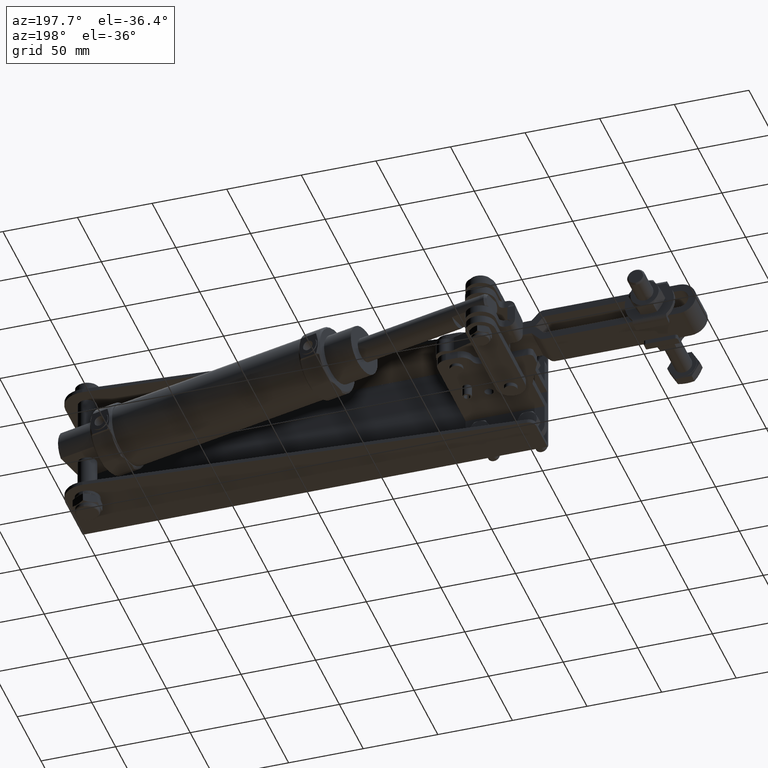
[diagram: clean part render]
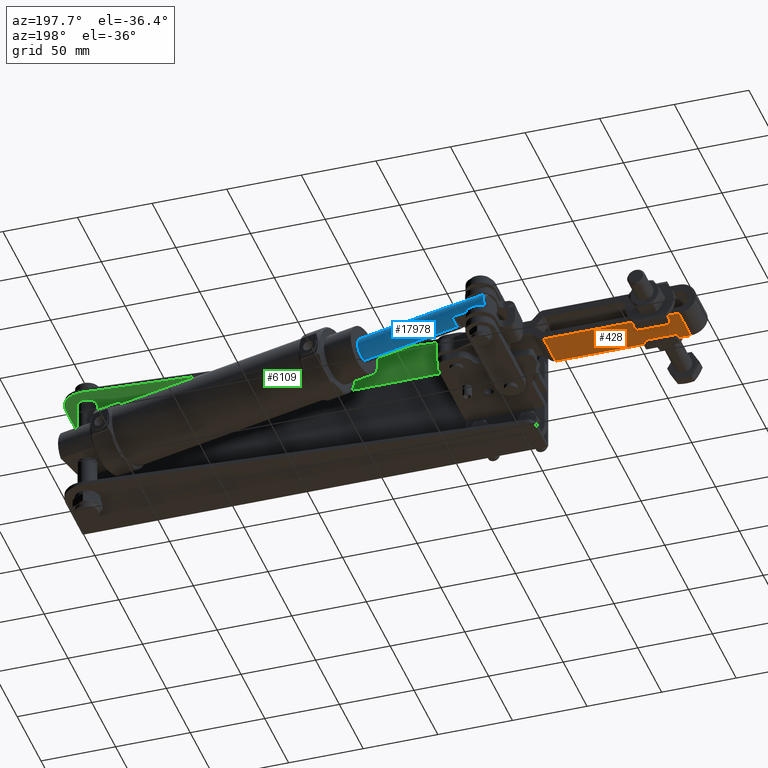
[diagram: same view with three faces highlighted in distinct colors, each labeled with its STEP entity id]
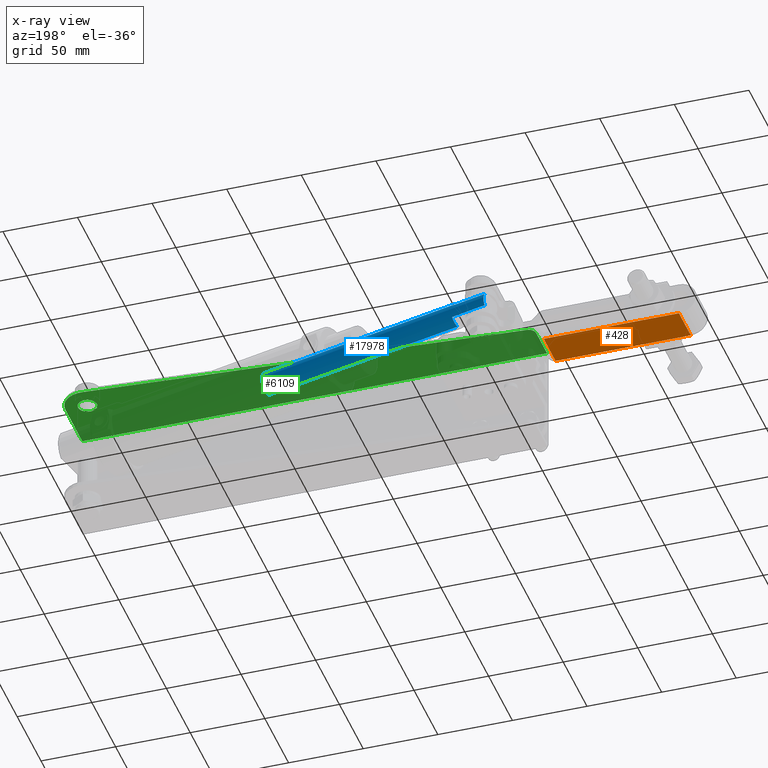
[diagram: x-ray of the same camera — body ghosted, the three highlighted faces saturated]
A machine part, auxiliary view with three faces highlighted in distinct colors.
The next image is the same camera in x-ray (body ghosted, the three faces saturated) — at least one of them is partly hidden behind the body in this view.
Their STEP definitions:

[orange] entity #428 — the highlighted planar face has unit normal (0, 0, -1).
#404 = ORIENTED_EDGE ( 'NONE', *, *, #14369, .T. ) ;
#428 = ADVANCED_FACE ( 'NONE', ( #10650 ), #21637, .T. ) ;
#1138 = CARTESIAN_POINT ( 'NONE',  ( -75.00885629904233600, 76.00000000000025600, -11.35000000000001600 ) ) ;
#1175 = CARTESIAN_POINT ( 'NONE',  ( -75.00885629904233600, 51.00000000000025600, -11.35000000000000300 ) ) ;
#2173 = VECTOR ( 'NONE', #9636, 1000.000000000000000 ) ;
#3152 = VERTEX_POINT ( 'NONE', #5247 ) ;
#3353 = EDGE_CURVE ( 'NONE', #22486, #3152, #16225, .T. ) ;
#5247 = CARTESIAN_POINT ( 'NONE',  ( -165.6499999999986400, 51.00000000000025600, -11.35000000000001600 ) ) ;
#6951 = VERTEX_POINT ( 'NONE', #1175 ) ;
#7180 = EDGE_LOOP ( 'NONE', ( #17545, #404, #22588, #21653 ) ) ;
#7461 = LINE ( 'NONE', #19276, #21515 ) ;
#8280 = DIRECTION ( 'NONE',  ( -1.000000000000000000, 0.0000000000000000000, -1.495451272393799800E-016 ) ) ;
#8434 = DIRECTION ( 'NONE',  ( -1.000000000000000000, -0.0000000000000000000, 0.0000000000000000000 ) ) ;
#9636 = DIRECTION ( 'NONE',  ( -0.0000000000000000000, -1.000000000000000000, 0.0000000000000000000 ) ) ;
#10564 = DIRECTION ( 'NONE',  ( -0.0000000000000000000, -1.000000000000000000, 0.0000000000000000000 ) ) ;
#10596 = DIRECTION ( 'NONE',  ( 1.000000000000000000, 0.0000000000000000000, 1.495451272393799800E-016 ) ) ;
#10650 = FACE_OUTER_BOUND ( 'NONE', #7180, .T. ) ;
#11632 = EDGE_CURVE ( 'NONE', #6951, #3152, #7461, .T. ) ;
#12448 = CARTESIAN_POINT ( 'NONE',  ( -72.84999999999867300, 83.00000000000025600, -11.35000000000000300 ) ) ;
#13479 = AXIS2_PLACEMENT_3D ( 'NONE', #12448, #23427, #10596 ) ;
#14369 = EDGE_CURVE ( 'NONE', #15806, #6951, #22734, .T. ) ;
#15656 = CARTESIAN_POINT ( 'NONE',  ( -176.9999999999986900, 76.00000000000025600, -11.35000000000001600 ) ) ;
#15778 = EDGE_CURVE ( 'NONE', #15806, #22486, #23257, .T. ) ;
#15806 = VERTEX_POINT ( 'NONE', #1138 ) ;
#16225 = LINE ( 'NONE', #20625, #2173 ) ;
#17291 = VECTOR ( 'NONE', #10564, 1000.000000000000000 ) ;
#17545 = ORIENTED_EDGE ( 'NONE', *, *, #15778, .F. ) ;
#17842 = CARTESIAN_POINT ( 'NONE',  ( -75.00885629904233600, 83.00000000000025600, -11.35000000000000300 ) ) ;
#18370 = VECTOR ( 'NONE', #8434, 1000.000000000000000 ) ;
#19137 = CARTESIAN_POINT ( 'NONE',  ( -165.6499999999986400, 76.00000000000025600, -11.35000000000001600 ) ) ;
#19276 = CARTESIAN_POINT ( 'NONE',  ( -72.84999999999867300, 51.00000000000025600, -11.35000000000000300 ) ) ;
#20625 = CARTESIAN_POINT ( 'NONE',  ( -165.6499999999986400, 83.00000000000025600, -11.35000000000001600 ) ) ;
#21515 = VECTOR ( 'NONE', #8280, 1000.000000000000000 ) ;
#21637 = PLANE ( 'NONE',  #13479 ) ;
#21653 = ORIENTED_EDGE ( 'NONE', *, *, #3353, .F. ) ;
#22486 = VERTEX_POINT ( 'NONE', #19137 ) ;
#22588 = ORIENTED_EDGE ( 'NONE', *, *, #11632, .T. ) ;
#22734 = LINE ( 'NONE', #17842, #17291 ) ;
#23257 = LINE ( 'NONE', #15656, #18370 ) ;
#23427 = DIRECTION ( 'NONE',  ( 1.495451272393799800E-016, 0.0000000000000000000, -1.000000000000000000 ) ) ;

[blue] entity #17978 — the highlighted cylindrical surface (edge-blend (fillet) strip) has radius 8 mm, axis along (0.9717, -0.2364, -0).
#252 = CARTESIAN_POINT ( 'NONE',  ( -25.14038329672013800, 100.8989818581250500, 4.271817669516890200E-015 ) ) ;
#344 = CARTESIAN_POINT ( 'NONE',  ( 112.0098691187218200, 67.53536750984798700, -7.247272280863953700E-016 ) ) ;
#537 = ORIENTED_EDGE ( 'NONE', *, *, #2723, .F. ) ;
#615 = AXIS2_PLACEMENT_3D ( 'NONE', #344, #13166, #18637 ) ;
#937 = CARTESIAN_POINT ( 'NONE',  ( -47.23694072003470300, 113.0815370104895500, -4.499999999999994700 ) ) ;
#999 = CARTESIAN_POINT ( 'NONE',  ( -25.14038329672013800, 100.8989818581250400, 8.000000000000003600 ) ) ;
#1084 = ORIENTED_EDGE ( 'NONE', *, *, #2083, .F. ) ;
#1172 = CARTESIAN_POINT ( 'NONE',  ( -23.57694322580608700, 107.3259294341256700, 4.500000000000003600 ) ) ;
#1876 = VERTEX_POINT ( 'NONE', #13360 ) ;
#2083 = EDGE_CURVE ( 'NONE', #11594, #1876, #14288, .T. ) ;
#2126 = DIRECTION ( 'NONE',  ( 0.0000000000000000000, 0.0000000000000000000, 1.000000000000000000 ) ) ;
#2692 = EDGE_CURVE ( 'NONE', #1876, #15397, #19990, .T. ) ;
#2723 = EDGE_CURVE ( 'NONE', #15219, #11594, #14529, .T. ) ;
#2730 = CYLINDRICAL_SURFACE ( 'NONE', #10605, 7.999999999999998200 ) ;
#3349 = EDGE_CURVE ( 'NONE', #15219, #22064, #8767, .T. ) ;
#3447 = CARTESIAN_POINT ( 'NONE',  ( -48.80038079098875400, 106.6545894343244600, 5.133779187452703200E-015 ) ) ;
#3525 = DIRECTION ( 'NONE',  ( 0.9716631414484020500, -0.2363699209938155400, -3.539883030537218600E-017 ) ) ;
#3789 = VECTOR ( 'NONE', #9519, 1000.000000000000100 ) ;
#4375 = LINE ( 'NONE', #7672, #3789 ) ;
#4441 = CARTESIAN_POINT ( 'NONE',  ( -25.14038329672013800, 100.8989818581250400, -7.999999999999992900 ) ) ;
#4553 = DIRECTION ( 'NONE',  ( -0.9716631414484021600, 0.2363699209938155700, 3.539883030537219200E-017 ) ) ;
#4690 = ORIENTED_EDGE ( 'NONE', *, *, #19008, .T. ) ;
#5267 = CARTESIAN_POINT ( 'NONE',  ( -25.14038329672013800, 100.8989818581250500, 4.271817669516890200E-015 ) ) ;
#5868 = DIRECTION ( 'NONE',  ( -0.9716631414484020500, 0.2363699209938155400, 3.539883030537218600E-017 ) ) ;
#6066 = ORIENTED_EDGE ( 'NONE', *, *, #10966, .T. ) ;
#7075 = CIRCLE ( 'NONE', #19972, 7.999999999999998200 ) ;
#7112 = DIRECTION ( 'NONE',  ( 0.0000000000000000000, 0.0000000000000000000, 1.000000000000000000 ) ) ;
#7672 = CARTESIAN_POINT ( 'NONE',  ( -48.80038079098875400, 106.6545894343244600, 8.000000000000003600 ) ) ;
#8176 = EDGE_LOOP ( 'NONE', ( #14303, #6066, #22396, #1084, #537, #21641, #19512, #4690 ) ) ;
#8767 = LINE ( 'NONE', #15007, #23407 ) ;
#9404 = VECTOR ( 'NONE', #3525, 1000.000000000000100 ) ;
#9519 = DIRECTION ( 'NONE',  ( 0.9716631414484020500, -0.2363699209938155400, -3.539883030537218600E-017 ) ) ;
#10605 = AXIS2_PLACEMENT_3D ( 'NONE', #3447, #19876, #18027 ) ;
#10966 = EDGE_CURVE ( 'NONE', #20918, #15397, #4375, .T. ) ;
#11498 = CARTESIAN_POINT ( 'NONE',  ( -47.23694071989869800, 113.0815370104564700, 4.500000000000004400 ) ) ;
#11594 = VERTEX_POINT ( 'NONE', #4441 ) ;
#11777 = CIRCLE ( 'NONE', #13118, 7.999999999999998200 ) ;
#11979 = DIRECTION ( 'NONE',  ( 0.9716631414484020500, -0.2363699209938155400, -3.539883030537218600E-017 ) ) ;
#12721 = VERTEX_POINT ( 'NONE', #1172 ) ;
#12772 = CARTESIAN_POINT ( 'NONE',  ( 112.0098691187218200, 67.53536750984798700, 7.999999999999998200 ) ) ;
#13094 = DIRECTION ( 'NONE',  ( -0.9716631414484021600, 0.2363699209938155700, 3.539883030537219200E-017 ) ) ;
#13118 = AXIS2_PLACEMENT_3D ( 'NONE', #5267, #18090, #7112 ) ;
#13166 = DIRECTION ( 'NONE',  ( 0.9716631414484020500, -0.2363699209938156000, -3.539883030537219200E-017 ) ) ;
#13360 = CARTESIAN_POINT ( 'NONE',  ( 112.0098691187218200, 67.53536750984798700, -7.999999999999998200 ) ) ;
#14288 = LINE ( 'NONE', #18181, #9404 ) ;
#14303 = ORIENTED_EDGE ( 'NONE', *, *, #20615, .F. ) ;
#14529 = CIRCLE ( 'NONE', #23218, 7.999999999999998200 ) ;
#14674 = VERTEX_POINT ( 'NONE', #11498 ) ;
#15007 = CARTESIAN_POINT ( 'NONE',  ( -36.54864616406222700, 110.4814678797220500, -4.499999999999994700 ) ) ;
#15219 = VERTEX_POINT ( 'NONE', #21369 ) ;
#15397 = VERTEX_POINT ( 'NONE', #12772 ) ;
#15535 = CARTESIAN_POINT ( 'NONE',  ( -48.80038079098875400, 106.6545894343244600, 5.133779187452703200E-015 ) ) ;
#17057 = VECTOR ( 'NONE', #11979, 1000.000000000000100 ) ;
#17344 = FACE_OUTER_BOUND ( 'NONE', #8176, .T. ) ;
#17376 = DIRECTION ( 'NONE',  ( 0.0000000000000000000, 0.0000000000000000000, -1.000000000000000000 ) ) ;
#17978 = ADVANCED_FACE ( 'NONE', ( #17344 ), #2730, .T. ) ;
#18027 = DIRECTION ( 'NONE',  ( 0.0000000000000000000, 0.0000000000000000000, -1.000000000000000000 ) ) ;
#18090 = DIRECTION ( 'NONE',  ( -0.9716631414484021600, 0.2363699209938155700, 3.539883030537219200E-017 ) ) ;
#18181 = CARTESIAN_POINT ( 'NONE',  ( -48.80038079098875400, 106.6545894343244600, -7.999999999999992900 ) ) ;
#18368 = EDGE_CURVE ( 'NONE', #14674, #22064, #7075, .T. ) ;
#18637 = DIRECTION ( 'NONE',  ( 0.2363699209938159300, 0.9716631414484020500, 0.0000000000000000000 ) ) ;
#19008 = EDGE_CURVE ( 'NONE', #14674, #12721, #22495, .T. ) ;
#19428 = CARTESIAN_POINT ( 'NONE',  ( -36.54864616406222700, 110.4814678797220500, 4.500000000000004400 ) ) ;
#19512 = ORIENTED_EDGE ( 'NONE', *, *, #18368, .F. ) ;
#19876 = DIRECTION ( 'NONE',  ( 0.9716631414484021600, -0.2363699209938155700, -3.539883030537219200E-017 ) ) ;
#19972 = AXIS2_PLACEMENT_3D ( 'NONE', #15535, #4553, #17376 ) ;
#19990 = CIRCLE ( 'NONE', #615, 8.000000000000005300 ) ;
#20615 = EDGE_CURVE ( 'NONE', #20918, #12721, #11777, .T. ) ;
#20918 = VERTEX_POINT ( 'NONE', #999 ) ;
#21369 = CARTESIAN_POINT ( 'NONE',  ( -23.57694322580608700, 107.3259294341256700, -4.499999999999994700 ) ) ;
#21641 = ORIENTED_EDGE ( 'NONE', *, *, #3349, .T. ) ;
#22064 = VERTEX_POINT ( 'NONE', #937 ) ;
#22396 = ORIENTED_EDGE ( 'NONE', *, *, #2692, .F. ) ;
#22495 = LINE ( 'NONE', #19428, #17057 ) ;
#23218 = AXIS2_PLACEMENT_3D ( 'NONE', #252, #13094, #2126 ) ;
#23407 = VECTOR ( 'NONE', #5868, 1000.000000000000100 ) ;

[green] entity #6109 — the highlighted planar face has unit normal (0, -0, 1).
#96 = DIRECTION ( 'NONE',  ( 1.000000000000000000, 0.0000000000000000000, 0.0000000000000000000 ) ) ;
#186 = AXIS2_PLACEMENT_3D ( 'NONE', #20725, #9741, #22551 ) ;
#1222 = EDGE_LOOP ( 'NONE', ( #22407, #10178 ) ) ;
#1372 = DIRECTION ( 'NONE',  ( -0.0000000000000000000, 3.927675794664469400E-016, -1.000000000000000000 ) ) ;
#1380 = VERTEX_POINT ( 'NONE', #3952 ) ;
#1383 = CARTESIAN_POINT ( 'NONE',  ( -53.00000000000001400, -2.500000000000001300, 35.50000000000000700 ) ) ;
#1917 = VERTEX_POINT ( 'NONE', #4163 ) ;
#2460 = VECTOR ( 'NONE', #19641, 1000.000000000000100 ) ;
#2682 = LINE ( 'NONE', #1383, #6383 ) ;
#3658 = LINE ( 'NONE', #7078, #17706 ) ;
#3670 = ORIENTED_EDGE ( 'NONE', *, *, #14925, .T. ) ;
#3709 = ORIENTED_EDGE ( 'NONE', *, *, #9727, .F. ) ;
#3952 = CARTESIAN_POINT ( 'NONE',  ( -53.00000000000001400, 0.009999999999997857800, 35.50000000000000700 ) ) ;
#4163 = CARTESIAN_POINT ( 'NONE',  ( 250.0499999999999800, 35.50000000000000000, 35.49999999999998600 ) ) ;
#4285 = AXIS2_PLACEMENT_3D ( 'NONE', #12363, #1372, #14212 ) ;
#4480 = EDGE_CURVE ( 'NONE', #22413, #1917, #20726, .T. ) ;
#4573 = FACE_OUTER_BOUND ( 'NONE', #7759, .T. ) ;
#5025 = CARTESIAN_POINT ( 'NONE',  ( -53.00000000000001400, 22.87354133646644900, 35.50000000000001400 ) ) ;
#5253 = CIRCLE ( 'NONE', #19940, 15.00000000000000700 ) ;
#5349 = CARTESIAN_POINT ( 'NONE',  ( 258.5000000000000000, -2.500000000000001300, 35.50000000000000700 ) ) ;
#6109 = ADVANCED_FACE ( 'NONE', ( #23507, #4573 ), #11320, .F. ) ;
#6383 = VECTOR ( 'NONE', #14221, 1000.000000000000000 ) ;
#6485 = CIRCLE ( 'NONE', #16711, 6.350000000000022700 ) ;
#6640 = ORIENTED_EDGE ( 'NONE', *, *, #13926, .T. ) ;
#7009 = CARTESIAN_POINT ( 'NONE',  ( 258.5000000000000000, 35.50000000000000000, 35.50000000000001400 ) ) ;
#7078 = CARTESIAN_POINT ( 'NONE',  ( 258.5000000000000000, 0.009999999999997857800, 35.50000000000000700 ) ) ;
#7707 = CARTESIAN_POINT ( 'NONE',  ( 258.5000000000000000, -2.500000000000001300, 35.50000000000000700 ) ) ;
#7759 = EDGE_LOOP ( 'NONE', ( #3670, #22233, #22547, #6640, #3709, #9340 ) ) ;
#9340 = ORIENTED_EDGE ( 'NONE', *, *, #13302, .T. ) ;
#9553 = DIRECTION ( 'NONE',  ( 0.0000000000000000000, -1.000000000000000000, -3.927675794664469400E-016 ) ) ;
#9594 = EDGE_CURVE ( 'NONE', #15714, #12695, #17080, .T. ) ;
#9727 = EDGE_CURVE ( 'NONE', #18286, #15298, #17930, .T. ) ;
#9741 = DIRECTION ( 'NONE',  ( 0.0000000000000000000, 0.0000000000000000000, 1.000000000000000000 ) ) ;
#10178 = ORIENTED_EDGE ( 'NONE', *, *, #22579, .T. ) ;
#10979 = DIRECTION ( 'NONE',  ( -0.0000000000000000000, 3.927675794664469400E-016, -1.000000000000000000 ) ) ;
#11092 = DIRECTION ( 'NONE',  ( 0.0000000000000000000, 0.0000000000000000000, 1.000000000000000000 ) ) ;
#11295 = VERTEX_POINT ( 'NONE', #5025 ) ;
#11320 = PLANE ( 'NONE',  #13767 ) ;
#12363 = CARTESIAN_POINT ( 'NONE',  ( -48.00000000000001400, 22.87354133646644900, 35.50000000000001400 ) ) ;
#12695 = VERTEX_POINT ( 'NONE', #17446 ) ;
#13302 = EDGE_CURVE ( 'NONE', #18286, #1380, #3658, .T. ) ;
#13767 = AXIS2_PLACEMENT_3D ( 'NONE', #7707, #20534, #9553 ) ;
#13926 = EDGE_CURVE ( 'NONE', #12695, #15298, #5253, .T. ) ;
#14212 = DIRECTION ( 'NONE',  ( 0.0000000000000000000, -1.000000000000000000, 0.0000000000000000000 ) ) ;
#14221 = DIRECTION ( 'NONE',  ( 0.0000000000000000000, 1.000000000000000000, 3.927675794664469400E-016 ) ) ;
#14925 = EDGE_CURVE ( 'NONE', #1380, #11295, #2682, .T. ) ;
#15298 = VERTEX_POINT ( 'NONE', #7009 ) ;
#15714 = VERTEX_POINT ( 'NONE', #17341 ) ;
#16711 = AXIS2_PLACEMENT_3D ( 'NONE', #22054, #11092, #96 ) ;
#17080 = LINE ( 'NONE', #17787, #2460 ) ;
#17126 = CARTESIAN_POINT ( 'NONE',  ( 237.3499999999999700, 35.50000000000000000, 35.49999999999998600 ) ) ;
#17139 = CARTESIAN_POINT ( 'NONE',  ( 258.5000000000000000, 0.009999999999997857800, 35.50000000000000700 ) ) ;
#17341 = CARTESIAN_POINT ( 'NONE',  ( -48.38745269307956000, 27.85850677372129500, 35.50000000000001400 ) ) ;
#17446 = CARTESIAN_POINT ( 'NONE',  ( 242.3376419207618300, 50.45489631176457100, 35.50000000000002100 ) ) ;
#17706 = VECTOR ( 'NONE', #18057, 1000.000000000000000 ) ;
#17787 = CARTESIAN_POINT ( 'NONE',  ( 254.3117839761075900, 51.38557750605861700, 35.50000000000002100 ) ) ;
#17930 = LINE ( 'NONE', #5349, #19096 ) ;
#18057 = DIRECTION ( 'NONE',  ( -1.000000000000000000, -0.0000000000000000000, -0.0000000000000000000 ) ) ;
#18286 = VERTEX_POINT ( 'NONE', #17139 ) ;
#19074 = CIRCLE ( 'NONE', #4285, 5.000000000000000900 ) ;
#19096 = VECTOR ( 'NONE', #21778, 1000.000000000000000 ) ;
#19641 = DIRECTION ( 'NONE',  ( 0.9969930874509717000, 0.07749053861587780500, 3.043577128370955300E-017 ) ) ;
#19940 = AXIS2_PLACEMENT_3D ( 'NONE', #21938, #10979, #23801 ) ;
#20534 = DIRECTION ( 'NONE',  ( 0.0000000000000000000, -3.927675794664469400E-016, 1.000000000000000000 ) ) ;
#20725 = CARTESIAN_POINT ( 'NONE',  ( 243.6999999999999600, 35.50000000000000000, 35.49999999999998600 ) ) ;
#20726 = CIRCLE ( 'NONE', #186, 6.350000000000022700 ) ;
#21778 = DIRECTION ( 'NONE',  ( 0.0000000000000000000, 1.000000000000000000, 3.927675794664469400E-016 ) ) ;
#21938 = CARTESIAN_POINT ( 'NONE',  ( 243.4999999999999700, 35.50000000000000000, 35.50000000000001400 ) ) ;
#22054 = CARTESIAN_POINT ( 'NONE',  ( 243.6999999999999600, 35.50000000000000000, 35.49999999999998600 ) ) ;
#22233 = ORIENTED_EDGE ( 'NONE', *, *, #22940, .T. ) ;
#22407 = ORIENTED_EDGE ( 'NONE', *, *, #4480, .T. ) ;
#22413 = VERTEX_POINT ( 'NONE', #17126 ) ;
#22547 = ORIENTED_EDGE ( 'NONE', *, *, #9594, .T. ) ;
#22551 = DIRECTION ( 'NONE',  ( 1.000000000000000000, 0.0000000000000000000, 0.0000000000000000000 ) ) ;
#22579 = EDGE_CURVE ( 'NONE', #1917, #22413, #6485, .T. ) ;
#22940 = EDGE_CURVE ( 'NONE', #11295, #15714, #19074, .T. ) ;
#23507 = FACE_BOUND ( 'NONE', #1222, .T. ) ;
#23801 = DIRECTION ( 'NONE',  ( 0.0000000000000000000, -1.000000000000000000, -4.625929269271483000E-016 ) ) ;